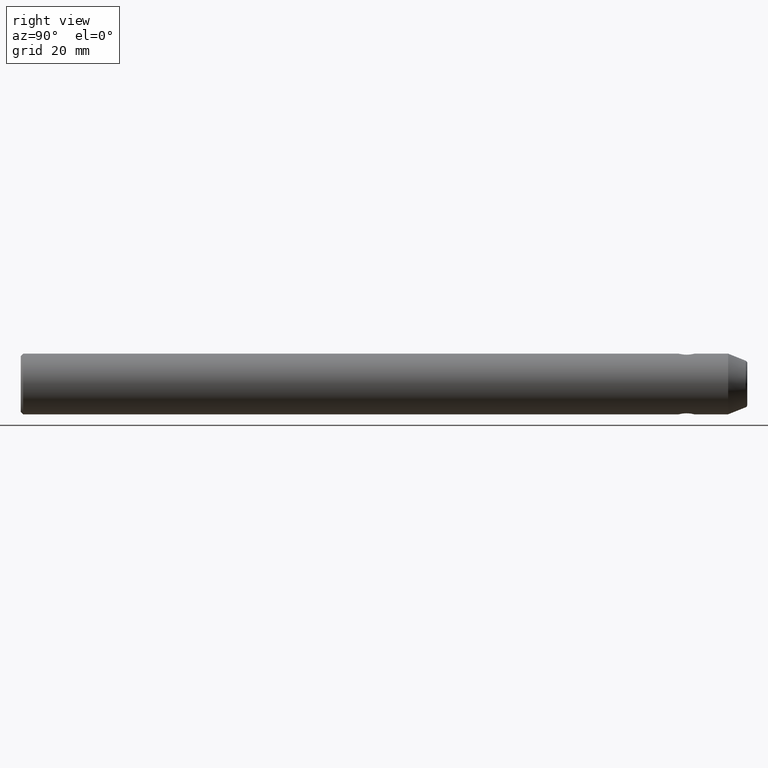
[diagram: clean part render]
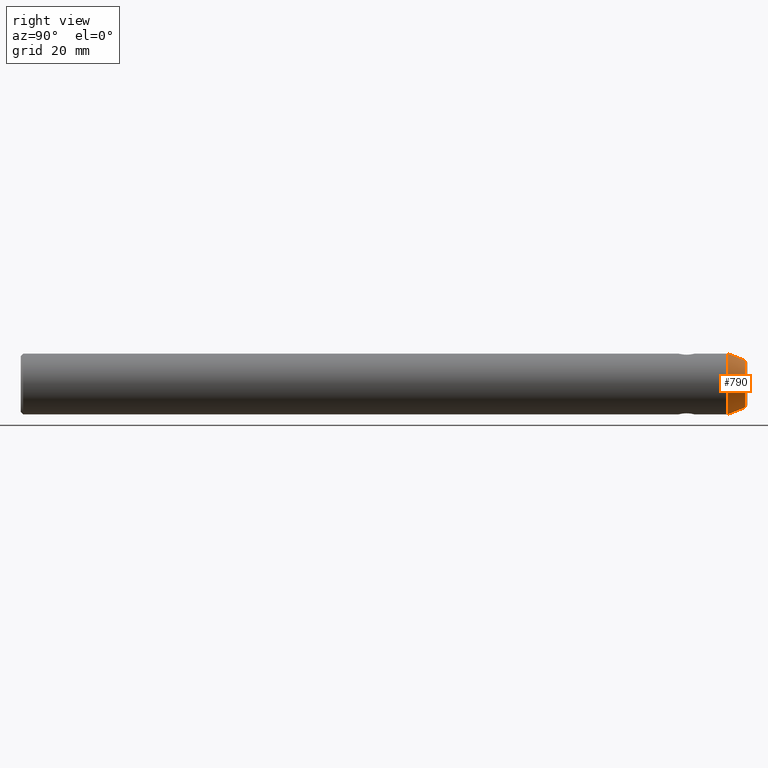
[diagram: same view with one face highlighted and labeled with its STEP entity id]
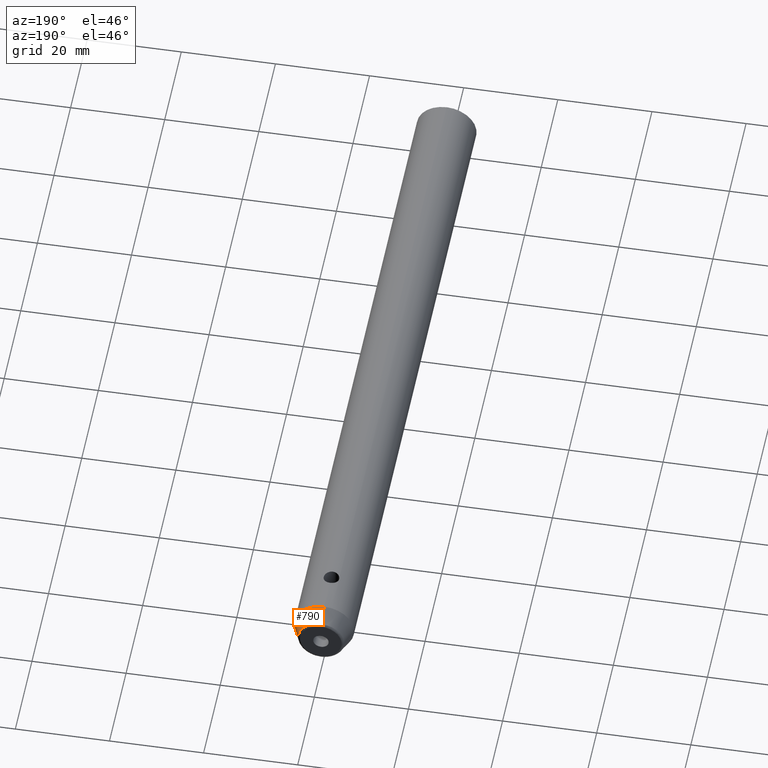
[diagram: same view with one face highlighted and labeled with its STEP entity id]
A machine part, right view. The second image highlights one B-rep face of the part: STEP entity #790.
A second angle (auxiliary view) of the same face is appended — the face is thin or edge-on in the first view.
In plain terms, the highlighted conical surface has half-angle 21.801 deg.
Its self-contained STEP definition (entity closure, byte-faithful):
#4 = DIRECTION ( 'NONE',  ( 0.0000000000000000000, 0.0000000000000000000, -1.000000000000000000 ) ) ;
#41 = CONICAL_SURFACE ( 'NONE', #65, 6.349999999969213600, 0.3805063771123649000 ) ;
#56 = FACE_OUTER_BOUND ( 'NONE', #501, .T. ) ;
#65 = AXIS2_PLACEMENT_3D ( 'NONE', #167, #661, #159 ) ;
#70 = DIRECTION ( 'NONE',  ( 4.548224030302236500E-017, -0.9284766908852593000, 0.3713906763541036700 ) ) ;
#127 = EDGE_CURVE ( 'NONE', #412, #574, #547, .T. ) ;
#159 = DIRECTION ( 'NONE',  ( 0.0000000000000000000, 0.0000000000000000000, -1.000000000000000000 ) ) ;
#165 = CARTESIAN_POINT ( 'NONE',  ( 7.776507174587908900E-016, 147.9999999999999100, 6.350000000001809800 ) ) ;
#167 = CARTESIAN_POINT ( 'NONE',  ( 0.0000000000000000000, 148.0000000000814000, 0.0000000000000000000 ) ) ;
#187 = CARTESIAN_POINT ( 'NONE',  ( 0.0000000000000000000, 147.9999999999999100, 0.0000000000000000000 ) ) ;
#235 = VECTOR ( 'NONE', #693, 1000.000000000000100 ) ;
#248 = CARTESIAN_POINT ( 'NONE',  ( 0.0000000000000000000, 151.6856953381307000, -4.875721864749493800 ) ) ;
#267 = CARTESIAN_POINT ( 'NONE',  ( 6.873772174893070400E-016, 151.6856953381307000, 4.875721864749493800 ) ) ;
#304 = EDGE_CURVE ( 'NONE', #574, #736, #573, .T. ) ;
#305 = AXIS2_PLACEMENT_3D ( 'NONE', #333, #526, #582 ) ;
#322 = EDGE_CURVE ( 'NONE', #407, #736, #643, .T. ) ;
#329 = ORIENTED_EDGE ( 'NONE', *, *, #322, .F. ) ;
#333 = CARTESIAN_POINT ( 'NONE',  ( 0.0000000000000000000, 151.6856953381307000, 0.0000000000000000000 ) ) ;
#335 = AXIS2_PLACEMENT_3D ( 'NONE', #187, #368, #4 ) ;
#357 = ORIENTED_EDGE ( 'NONE', *, *, #127, .T. ) ;
#368 = DIRECTION ( 'NONE',  ( -0.0000000000000000000, -1.000000000000000000, -0.0000000000000000000 ) ) ;
#398 = LINE ( 'NONE', #634, #235 ) ;
#407 = VERTEX_POINT ( 'NONE', #679 ) ;
#412 = VERTEX_POINT ( 'NONE', #248 ) ;
#426 = CARTESIAN_POINT ( 'NONE',  ( 7.776507174547990500E-016, 148.0000000000814000, 6.349999999969213600 ) ) ;
#500 = EDGE_CURVE ( 'NONE', #412, #407, #398, .T. ) ;
#501 = EDGE_LOOP ( 'NONE', ( #357, #583, #329, #682 ) ) ;
#526 = DIRECTION ( 'NONE',  ( 0.0000000000000000000, -1.000000000000000000, 0.0000000000000000000 ) ) ;
#547 = CIRCLE ( 'NONE', #305, 4.875721864749493800 ) ;
#573 = LINE ( 'NONE', #426, #723 ) ;
#574 = VERTEX_POINT ( 'NONE', #267 ) ;
#582 = DIRECTION ( 'NONE',  ( 0.0000000000000000000, 0.0000000000000000000, -1.000000000000000000 ) ) ;
#583 = ORIENTED_EDGE ( 'NONE', *, *, #304, .T. ) ;
#634 = CARTESIAN_POINT ( 'NONE',  ( 0.0000000000000000000, 148.0000000000814000, -6.349999999969213600 ) ) ;
#643 = CIRCLE ( 'NONE', #335, 6.349999999999999600 ) ;
#661 = DIRECTION ( 'NONE',  ( 0.0000000000000000000, -1.000000000000000000, 0.0000000000000000000 ) ) ;
#679 = CARTESIAN_POINT ( 'NONE',  ( 0.0000000000000000000, 147.9999999999999100, -6.350000000001809800 ) ) ;
#682 = ORIENTED_EDGE ( 'NONE', *, *, #500, .F. ) ;
#693 = DIRECTION ( 'NONE',  ( 0.0000000000000000000, -0.9284766908852593000, -0.3713906763541036700 ) ) ;
#723 = VECTOR ( 'NONE', #70, 1000.000000000000100 ) ;
#736 = VERTEX_POINT ( 'NONE', #165 ) ;
#790 = ADVANCED_FACE ( 'NONE', ( #56 ), #41, .T. ) ;